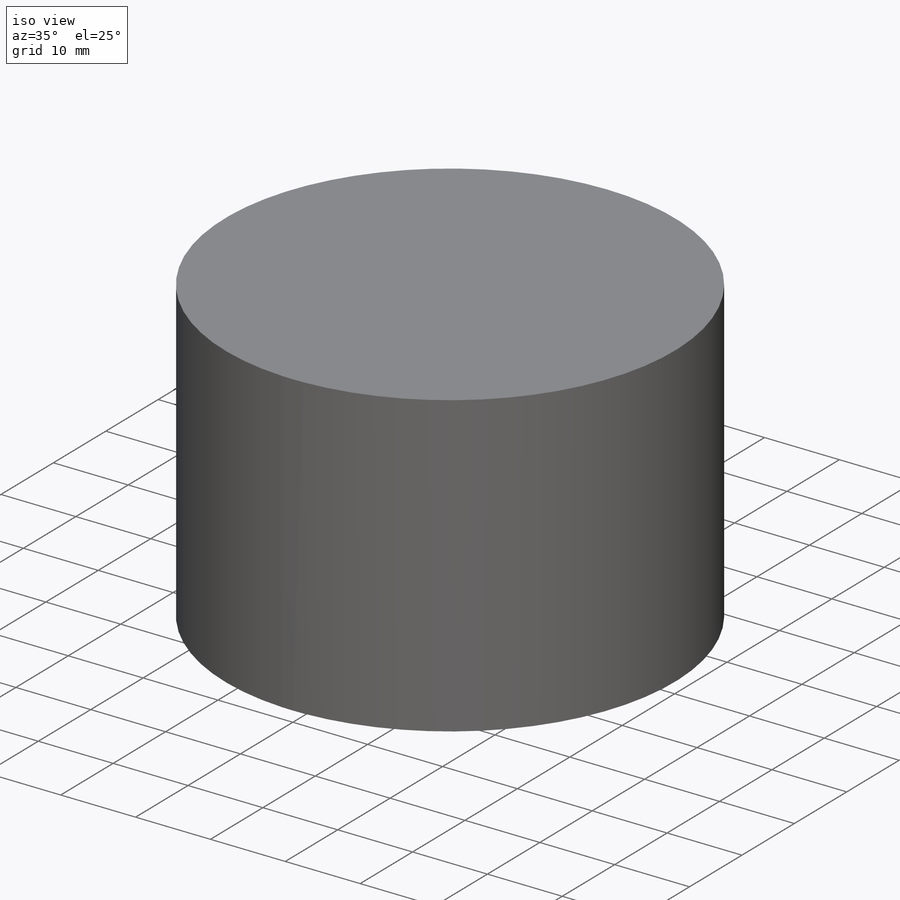
[diagram: iso view]
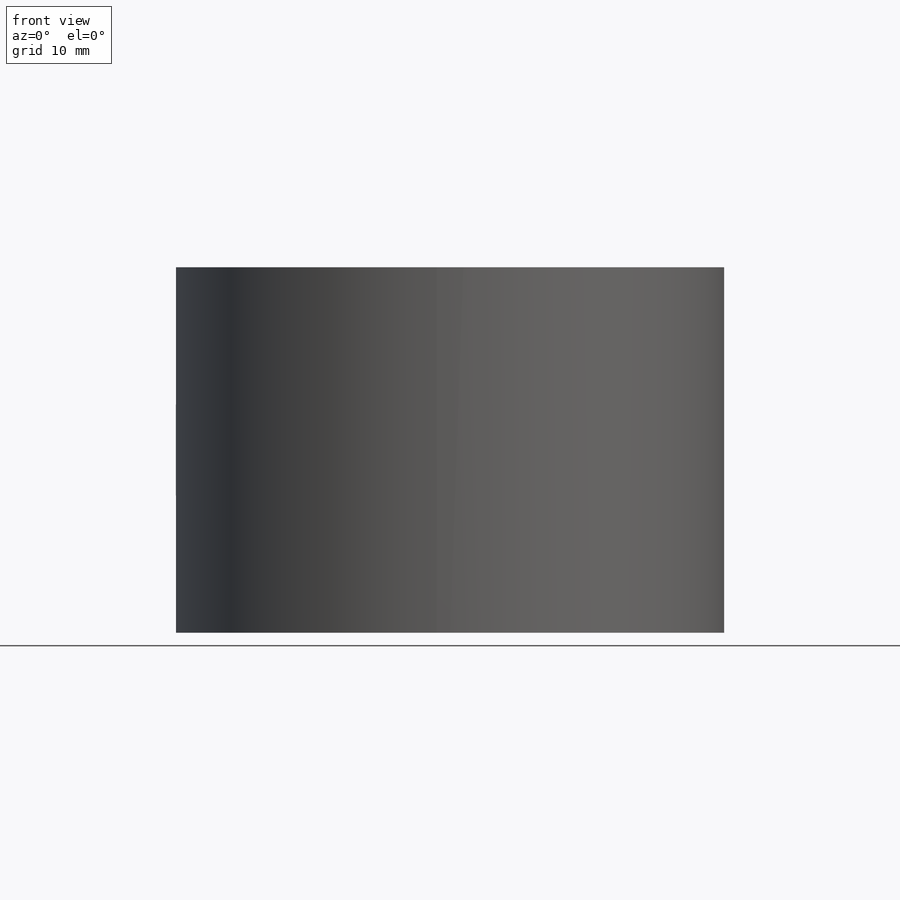
[diagram: front view]
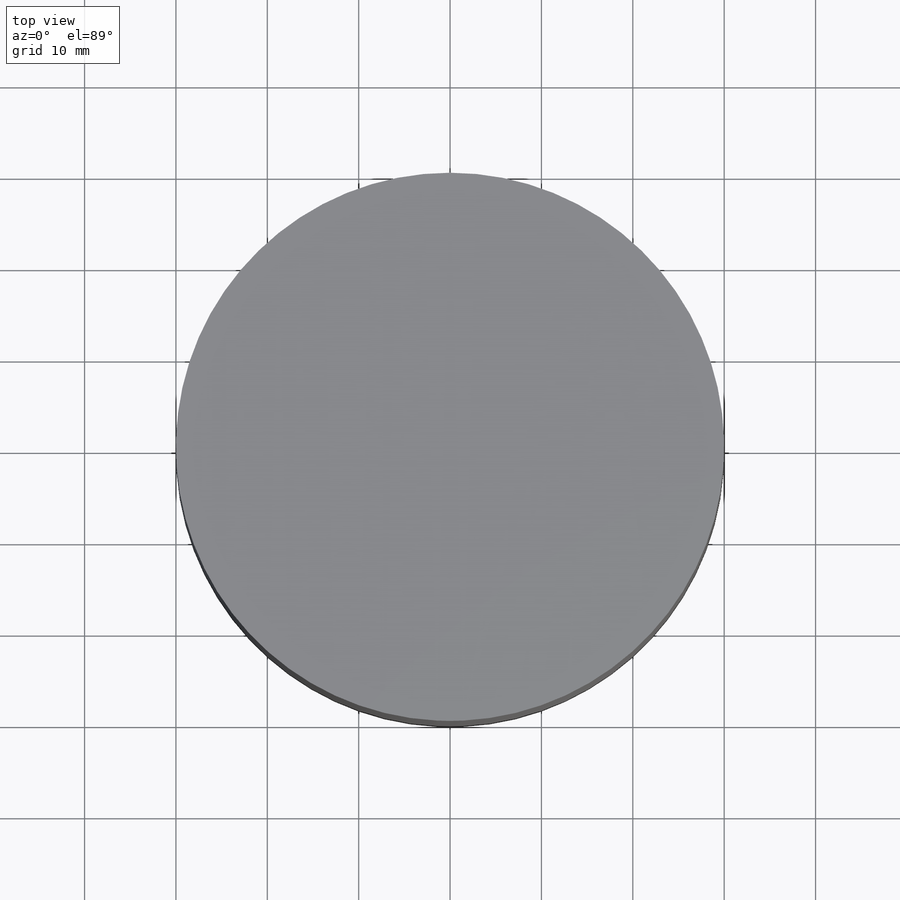
[diagram: top view]
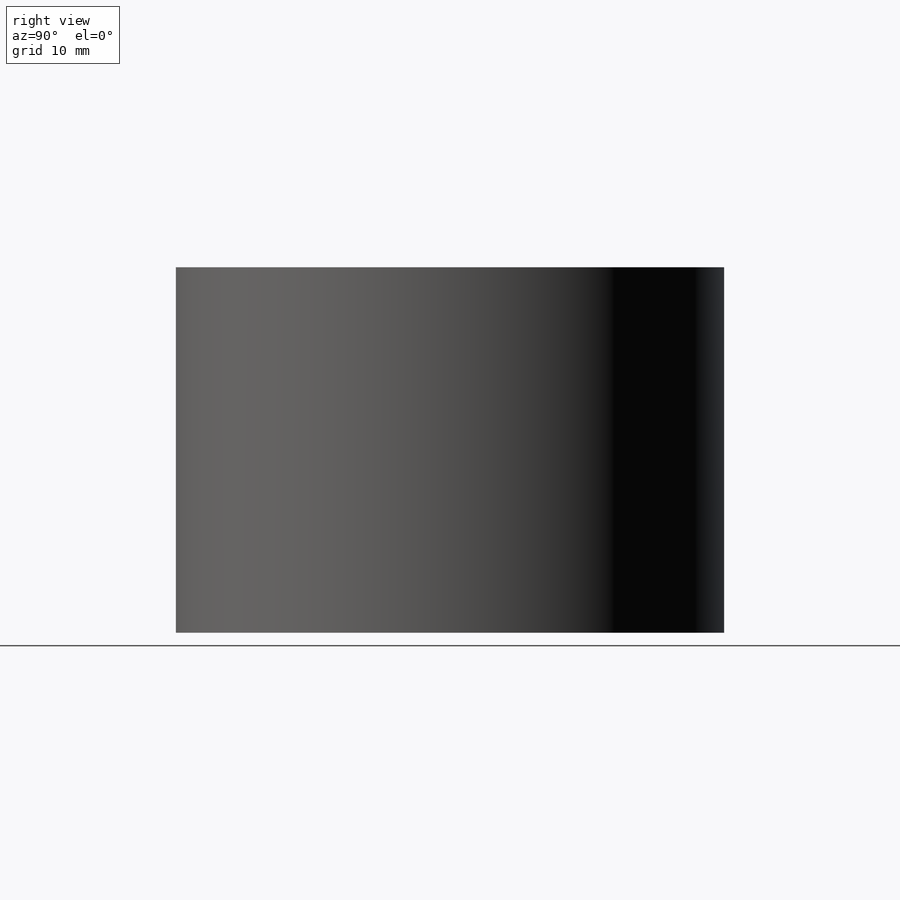
[diagram: right view]
SOLIDWORKS PART (.sldprt)
format: sldprt  version: not decoded by parser v0  size: 168,960 bytes
history: native  units: mm
features: fillet x4, plane x3, sketch x3, material x1, extrude x1, cut_revolve x1 (+9 scaffold rows collapsed)
feature tree (22):
  scaffold x9  (default folders/planes/origin — collapsed)
  material  "Material <nicht festgelegt>"
  plane  "Vorne"
  plane  "Oben"
  plane  "Seite"
  sketch  "Skizze1"  dims[D1=60.0mm]
  extrude  "Aufsatz-Linear austragen1"  Depth=40mm
  sketch  "Skizze2"  dims[D1=50.0mm D2=10.0mm D3=15.0mm]
  cut_revolve  "nut"  Angle=90deg
  sketch  "Skizze3"  dims[D1=6.0mm]
  fillet  "Verrundung1"  [1 undecoded]
  fillet  "Verrundung2"  [1 undecoded]
  fillet  "Verrundung3"  [1 undecoded]
  fillet  "Verrundung4"  [1 undecoded]
decode coverage: 5 of 9 modeling features carry decoded parameters
note: 4 parameter values undecoded
summary: no parameter record found for 4 features
note: suppression state not decoded; provenance and decode notes live in map.json
